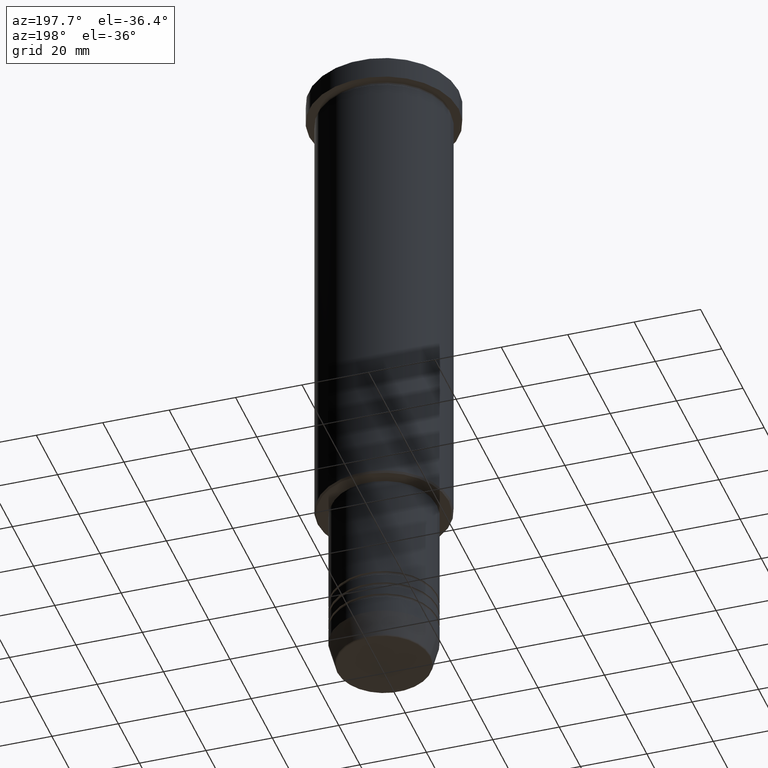
[diagram: clean part render]
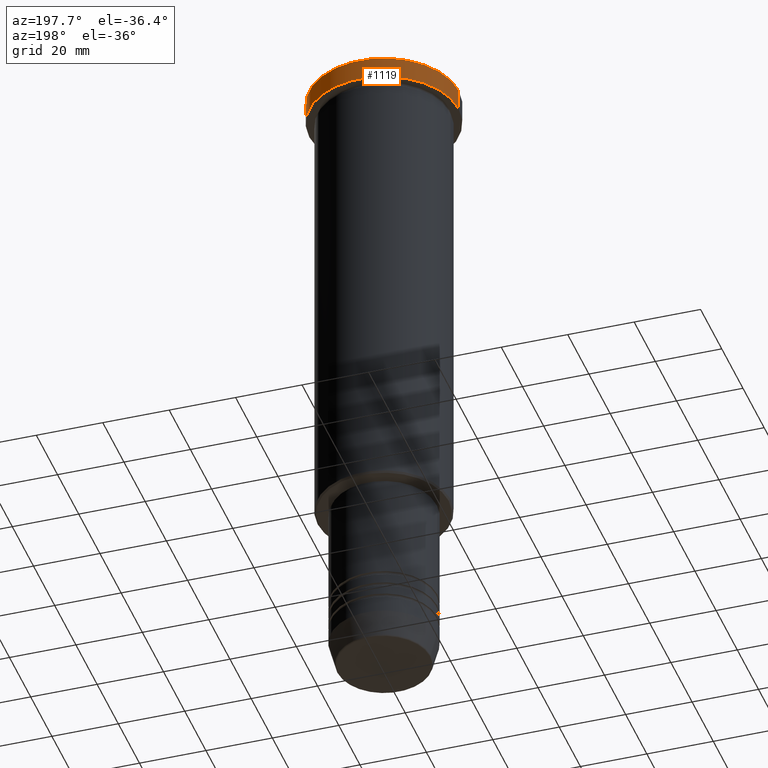
[diagram: same view with one face highlighted and labeled with its STEP entity id]
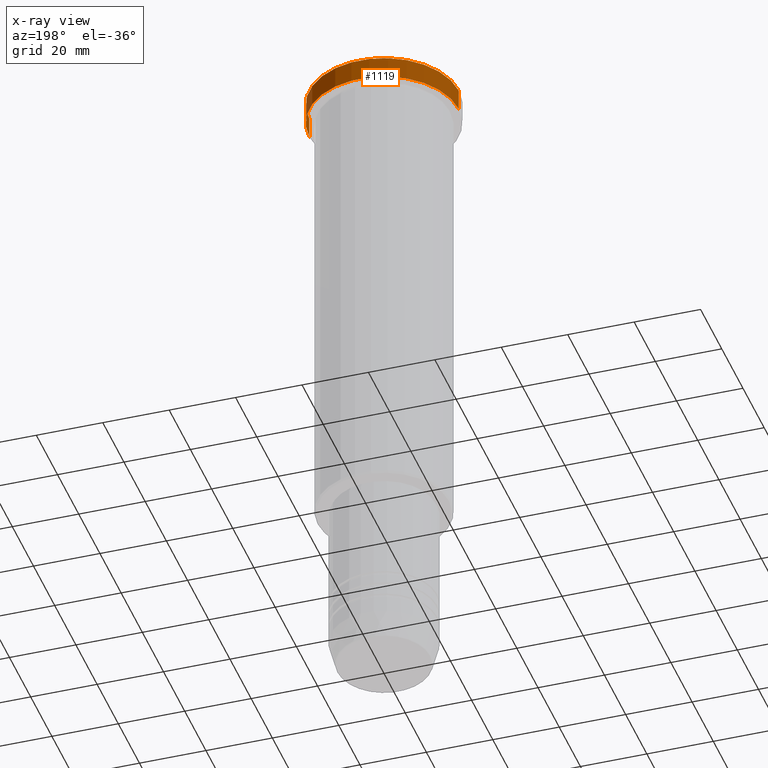
[diagram: x-ray of the same camera — body ghosted, the highlighted face saturated]
A machine part, auxiliary view. The second image highlights one B-rep face of the part: STEP entity #1119.
The next image is the same camera in x-ray: the body ghosted, the highlighted face saturated — about 0% of this face is hidden behind the body in this view.
In plain terms, the highlighted cylindrical surface (partial cylindrical patch) has radius 22.5 mm, axis along (-0, -0, 1).
Its self-contained STEP definition (entity closure, byte-faithful):
#15 = VERTEX_POINT ( 'NONE', #175 ) ;
#59 = DIRECTION ( 'NONE',  ( 0.000000000000000000, 0.000000000000000000, -1.000000000000000000 ) ) ;
#84 = CARTESIAN_POINT ( 'NONE',  ( -22.50000000000000000, 2.755455298081544778E-15, -0.5000000000000490719 ) ) ;
#103 = CARTESIAN_POINT ( 'NONE',  ( -22.50000000000000000, 2.755455298081544778E-15, 0.000000000000000000 ) ) ;
#104 = AXIS2_PLACEMENT_3D ( 'NONE', #510, #59, #431 ) ;
#173 = EDGE_LOOP ( 'NONE', ( #1113, #421, #812, #898 ) ) ;
#175 = CARTESIAN_POINT ( 'NONE',  ( 22.50000000000000000, 0.000000000000000000, -0.5000000000000490719 ) ) ;
#206 = CARTESIAN_POINT ( 'NONE',  ( 0.000000000000000000, 0.000000000000000000, 0.000000000000000000 ) ) ;
#256 = VECTOR ( 'NONE', #394, 1000.000000000000000 ) ;
#266 = CARTESIAN_POINT ( 'NONE',  ( 22.50000000000000000, 0.000000000000000000, -6.999999999999995559 ) ) ;
#283 = DIRECTION ( 'NONE',  ( 1.000000000000000000, 0.000000000000000000, 0.000000000000000000 ) ) ;
#287 = LINE ( 'NONE', #942, #256 ) ;
#362 = EDGE_CURVE ( 'NONE', #1024, #15, #461, .T. ) ;
#378 = CYLINDRICAL_SURFACE ( 'NONE', #524, 22.50000000000000000 ) ;
#394 = DIRECTION ( 'NONE',  ( -0.000000000000000000, -0.000000000000000000, 1.000000000000000000 ) ) ;
#421 = ORIENTED_EDGE ( 'NONE', *, *, #943, .T. ) ;
#429 = AXIS2_PLACEMENT_3D ( 'NONE', #1112, #849, #853 ) ;
#431 = DIRECTION ( 'NONE',  ( 1.000000000000000000, 0.000000000000000000, 0.000000000000000000 ) ) ;
#461 = CIRCLE ( 'NONE', #104, 22.50000000000000000 ) ;
#510 = CARTESIAN_POINT ( 'NONE',  ( 0.000000000000000000, 0.000000000000000000, -0.5000000000000490719 ) ) ;
#524 = AXIS2_PLACEMENT_3D ( 'NONE', #206, #567, #283 ) ;
#567 = DIRECTION ( 'NONE',  ( -0.000000000000000000, -0.000000000000000000, 1.000000000000000000 ) ) ;
#608 = CARTESIAN_POINT ( 'NONE',  ( -22.50000000000000000, 2.755455298081544778E-15, -6.999999999999995559 ) ) ;
#624 = LINE ( 'NONE', #103, #841 ) ;
#812 = ORIENTED_EDGE ( 'NONE', *, *, #362, .T. ) ;
#817 = VERTEX_POINT ( 'NONE', #608 ) ;
#819 = DIRECTION ( 'NONE',  ( -0.000000000000000000, -0.000000000000000000, 1.000000000000000000 ) ) ;
#841 = VECTOR ( 'NONE', #819, 1000.000000000000000 ) ;
#845 = FACE_OUTER_BOUND ( 'NONE', #173, .T. ) ;
#849 = DIRECTION ( 'NONE',  ( -0.000000000000000000, -0.000000000000000000, 1.000000000000000000 ) ) ;
#853 = DIRECTION ( 'NONE',  ( 1.000000000000000000, 0.000000000000000000, 0.000000000000000000 ) ) ;
#898 = ORIENTED_EDGE ( 'NONE', *, *, #1130, .F. ) ;
#919 = VERTEX_POINT ( 'NONE', #266 ) ;
#934 = CIRCLE ( 'NONE', #429, 22.50000000000000000 ) ;
#942 = CARTESIAN_POINT ( 'NONE',  ( 22.50000000000000000, 0.000000000000000000, 0.000000000000000000 ) ) ;
#943 = EDGE_CURVE ( 'NONE', #817, #1024, #624, .T. ) ;
#1024 = VERTEX_POINT ( 'NONE', #84 ) ;
#1112 = CARTESIAN_POINT ( 'NONE',  ( 0.000000000000000000, 0.000000000000000000, -6.999999999999995559 ) ) ;
#1113 = ORIENTED_EDGE ( 'NONE', *, *, #1156, .T. ) ;
#1119 = ADVANCED_FACE ( 'NONE', ( #845 ), #378, .T. ) ;
#1130 = EDGE_CURVE ( 'NONE', #919, #15, #287, .T. ) ;
#1156 = EDGE_CURVE ( 'NONE', #919, #817, #934, .T. ) ;